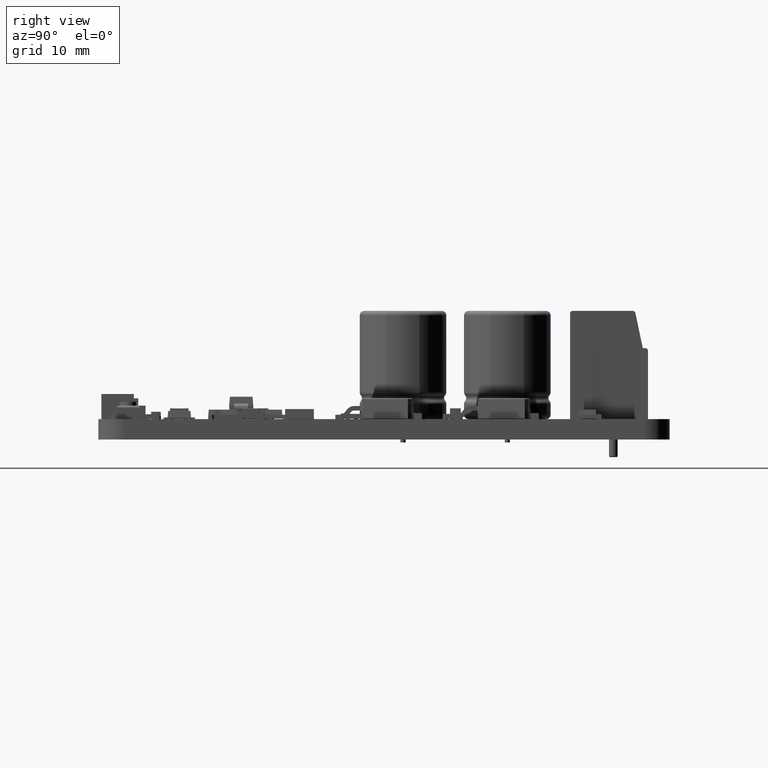
[diagram: clean part render]
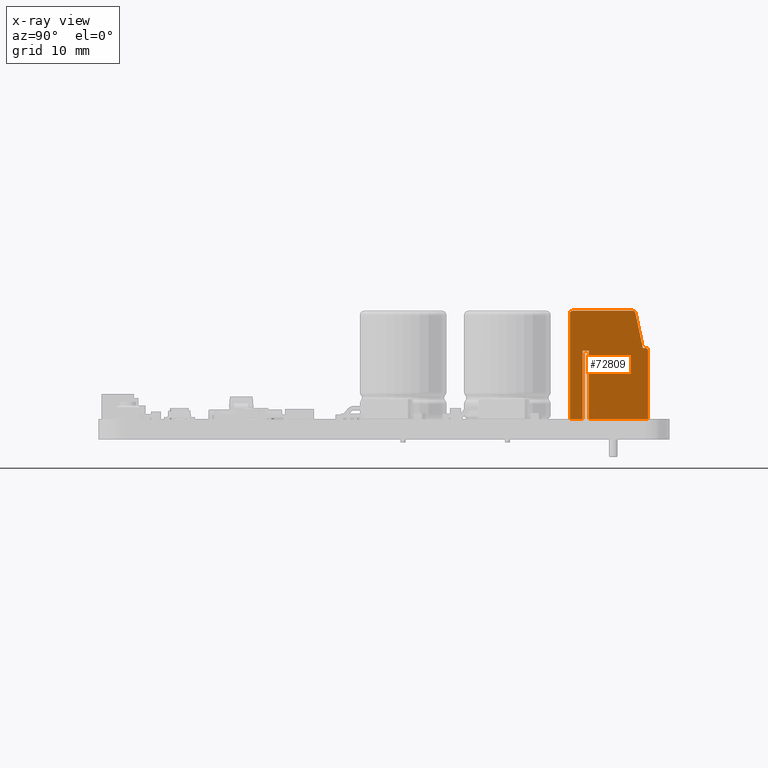
[diagram: x-ray — body ghosted, one internal face saturated and labeled with its STEP entity id]
A machine part, right view, then the same camera in x-ray: the body is ghosted and one INTERNAL B-rep face — a face not visible from any outside direction — is saturated and labeled: STEP entity #72809.
In plain terms, the highlighted planar face has unit normal (-1, 0, 0).
Its self-contained STEP definition (entity closure, byte-faithful):
#70215 = VERTEX_POINT('',#70216);
#70216 = CARTESIAN_POINT('',(0.3,12.5,12.5));
#70222 = EDGE_CURVE('',#70223,#70215,#70225,.T.);
#70223 = VERTEX_POINT('',#70224);
#70224 = CARTESIAN_POINT('',(-2.473188158757E-15,12.2,12.5));
#70225 = CIRCLE('',#70226,0.3);
#70226 = AXIS2_PLACEMENT_3D('',#70227,#70228,#70229);
#70227 = CARTESIAN_POINT('',(0.3,12.2,12.5));
#70228 = DIRECTION('',(0.,0.,-1.));
#70229 = DIRECTION('',(-1.,0.,0.));
#70247 = VERTEX_POINT('',#70248);
#70248 = CARTESIAN_POINT('',(7.549927197299,12.261458946237,12.5));
#70254 = EDGE_CURVE('',#70255,#70247,#70257,.T.);
#70255 = VERTEX_POINT('',#70256);
#70256 = CARTESIAN_POINT('',(7.256290009723,12.5,12.5));
#70257 = CIRCLE('',#70258,0.3);
#70258 = AXIS2_PLACEMENT_3D('',#70259,#70260,#70261);
#70259 = CARTESIAN_POINT('',(7.256290009723,12.2,12.5));
#70260 = DIRECTION('',(0.,0.,-1.));
#70261 = DIRECTION('',(-1.,0.,0.));
#70279 = VERTEX_POINT('',#70280);
#70280 = CARTESIAN_POINT('',(8.4,8.2,12.5));
#70286 = EDGE_CURVE('',#70247,#70279,#70287,.T.);
#70287 = LINE('',#70288,#70289);
#70288 = CARTESIAN_POINT('',(8.42518134715,8.079689119171,12.5));
#70289 = VECTOR('',#70290,1.);
#70290 = DIRECTION('',(0.204863154123,-0.978790625253,0.));
#70303 = EDGE_CURVE('',#70215,#70255,#70304,.T.);
#70304 = LINE('',#70305,#70306);
#70305 = CARTESIAN_POINT('',(9.,12.5,12.5));
#70306 = VECTOR('',#70307,1.);
#70307 = DIRECTION('',(1.,0.,0.));
#70359 = EDGE_CURVE('',#70360,#70223,#70362,.T.);
#70360 = VERTEX_POINT('',#70361);
#70361 = CARTESIAN_POINT('',(-1.577721810442E-30,-1.110223024625E-16,
    12.5));
#70362 = LINE('',#70363,#70364);
#70363 = CARTESIAN_POINT('',(-1.734723475977E-15,8.2,12.5));
#70364 = VECTOR('',#70365,1.);
#70365 = DIRECTION('',(-1.846161706952E-16,1.,0.));
#70383 = VERTEX_POINT('',#70384);
#70384 = CARTESIAN_POINT('',(9.,7.9,12.5));
#70390 = EDGE_CURVE('',#70391,#70383,#70393,.T.);
#70391 = VERTEX_POINT('',#70392);
#70392 = CARTESIAN_POINT('',(8.7,8.2,12.5));
#70393 = CIRCLE('',#70394,0.3);
#70394 = AXIS2_PLACEMENT_3D('',#70395,#70396,#70397);
#70395 = CARTESIAN_POINT('',(8.7,7.9,12.5));
#70396 = DIRECTION('',(0.,0.,-1.));
#70397 = DIRECTION('',(-1.,0.,0.));
#70415 = EDGE_CURVE('',#70279,#70391,#70416,.T.);
#70416 = LINE('',#70417,#70418);
#70417 = CARTESIAN_POINT('',(9.,8.2,12.5));
#70418 = VECTOR('',#70419,1.);
#70419 = DIRECTION('',(1.,0.,0.));
#70432 = VERTEX_POINT('',#70433);
#70433 = CARTESIAN_POINT('',(9.,1.734723475977E-15,12.5));
#70439 = EDGE_CURVE('',#70383,#70432,#70440,.T.);
#70440 = LINE('',#70441,#70442);
#70441 = CARTESIAN_POINT('',(9.,8.2,12.5));
#70442 = VECTOR('',#70443,1.);
#70443 = DIRECTION('',(0.,-1.,0.));
#70496 = EDGE_CURVE('',#70497,#70360,#70499,.T.);
#70497 = VERTEX_POINT('',#70498);
#70498 = CARTESIAN_POINT('',(1.44,-1.873663028928E-16,12.5));
#70499 = LINE('',#70500,#70501);
#70500 = CARTESIAN_POINT('',(9.,1.734723475977E-15,12.5));
#70501 = VECTOR('',#70502,1.);
#70502 = DIRECTION('',(-1.,-1.228261670411E-16,0.));
#70521 = VERTEX_POINT('',#70522);
#70522 = CARTESIAN_POINT('',(2.16,-1.432804741552E-16,12.5));
#70528 = EDGE_CURVE('',#70432,#70521,#70529,.T.);
#70529 = LINE('',#70530,#70531);
#70530 = CARTESIAN_POINT('',(9.,1.734723475977E-15,12.5));
#70531 = VECTOR('',#70532,1.);
#70532 = DIRECTION('',(-1.,-1.228261670411E-16,0.));
#72603 = VERTEX_POINT('',#72604);
#72604 = CARTESIAN_POINT('',(1.44,7.9,12.5));
#72610 = EDGE_CURVE('',#72611,#72603,#72613,.T.);
#72611 = VERTEX_POINT('',#72612);
#72612 = CARTESIAN_POINT('',(2.16,7.9,12.5));
#72613 = LINE('',#72614,#72615);
#72614 = CARTESIAN_POINT('',(2.16,7.9,12.5));
#72615 = VECTOR('',#72616,1.);
#72616 = DIRECTION('',(-1.,-6.123031769112E-17,0.));
#72640 = EDGE_CURVE('',#72611,#70521,#72641,.T.);
#72641 = LINE('',#72642,#72643);
#72642 = CARTESIAN_POINT('',(2.16,7.9,12.5));
#72643 = VECTOR('',#72644,1.);
#72644 = DIRECTION('',(6.123031769112E-17,-1.,0.));
#72672 = EDGE_CURVE('',#72603,#70497,#72673,.T.);
#72673 = LINE('',#72674,#72675);
#72674 = CARTESIAN_POINT('',(1.44,7.9,12.5));
#72675 = VECTOR('',#72676,1.);
#72676 = DIRECTION('',(6.123031769112E-17,-1.,0.));
#72809 = ADVANCED_FACE('',(#72810),#72825,.T.);
#72810 = FACE_BOUND('',#72811,.T.);
#72811 = EDGE_LOOP('',(#72812,#72813,#72814,#72815,#72816,#72817,#72818,
    #72819,#72820,#72821,#72822,#72823,#72824));
#72812 = ORIENTED_EDGE('',*,*,#72610,.T.);
#72813 = ORIENTED_EDGE('',*,*,#72672,.T.);
#72814 = ORIENTED_EDGE('',*,*,#70496,.T.);
#72815 = ORIENTED_EDGE('',*,*,#70359,.T.);
#72816 = ORIENTED_EDGE('',*,*,#70222,.T.);
#72817 = ORIENTED_EDGE('',*,*,#70303,.T.);
#72818 = ORIENTED_EDGE('',*,*,#70254,.T.);
#72819 = ORIENTED_EDGE('',*,*,#70286,.T.);
#72820 = ORIENTED_EDGE('',*,*,#70415,.T.);
#72821 = ORIENTED_EDGE('',*,*,#70390,.T.);
#72822 = ORIENTED_EDGE('',*,*,#70439,.T.);
#72823 = ORIENTED_EDGE('',*,*,#70528,.T.);
#72824 = ORIENTED_EDGE('',*,*,#72640,.F.);
#72825 = PLANE('',#72826);
#72826 = AXIS2_PLACEMENT_3D('',#72827,#72828,#72829);
#72827 = CARTESIAN_POINT('',(9.,8.2,12.5));
#72828 = DIRECTION('',(0.,0.,-1.));
#72829 = DIRECTION('',(-1.,0.,0.));